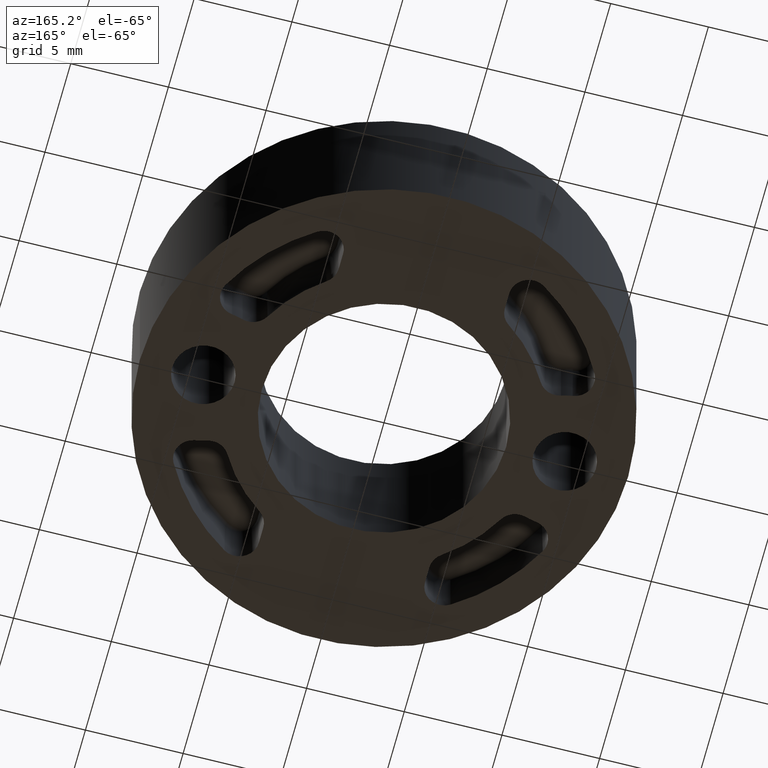
[diagram: clean part render]
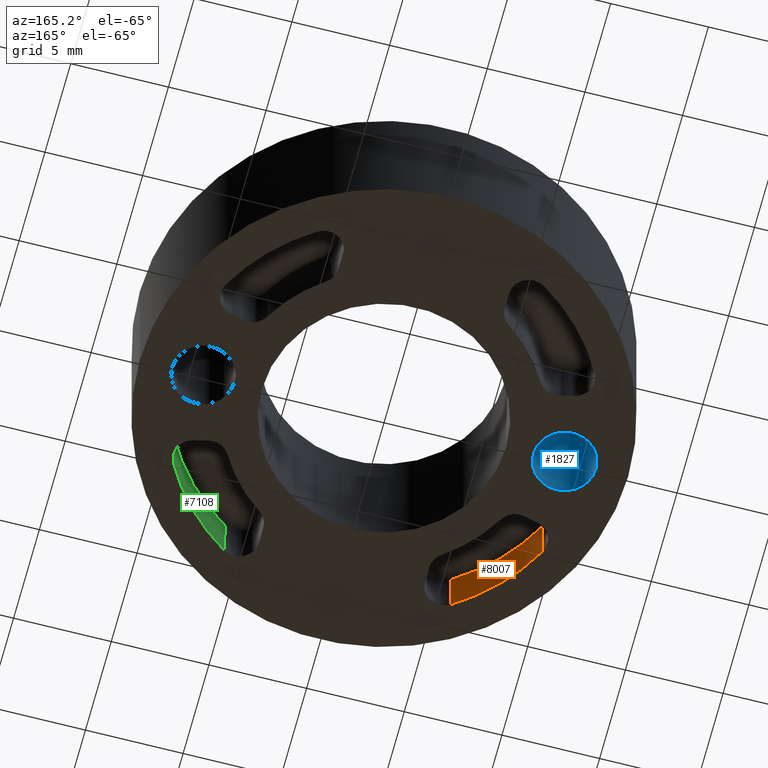
[diagram: same view with three faces highlighted in distinct colors, each labeled with its STEP entity id]
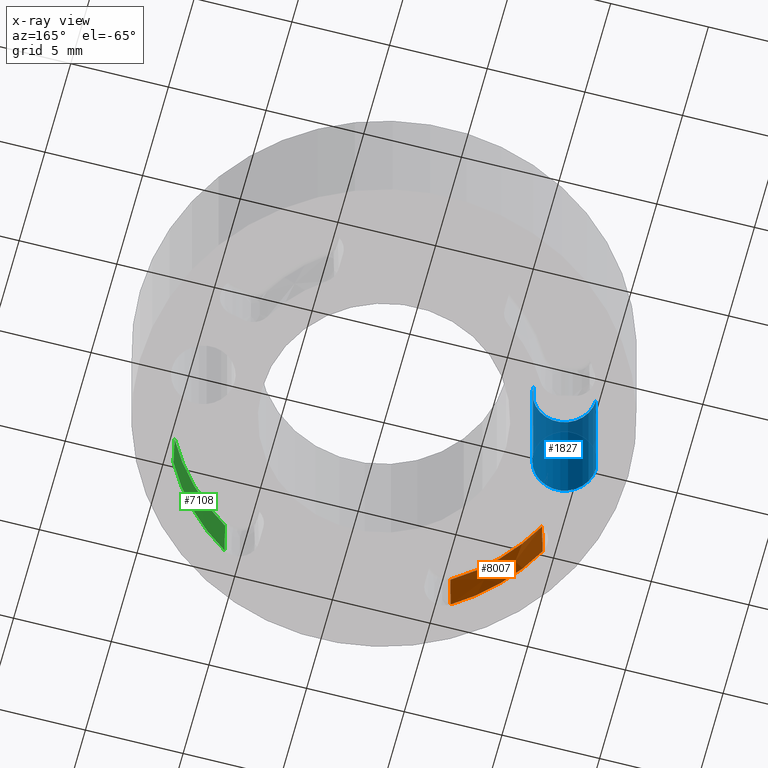
[diagram: x-ray of the same camera — body ghosted, the three highlighted faces saturated]
A machine part, auxiliary view with three faces highlighted in distinct colors.
The next image is the same camera in x-ray (body ghosted, the three faces saturated) — at least one of them is partly hidden behind the body in this view.
Their STEP definitions:

[orange] entity #8007 — the highlighted conical surface has half-angle 1 deg.
#1646 = EDGE_CURVE ( 'NONE', #1648, #1647, #9398, .T. ) ;
#1647 = VERTEX_POINT ( 'NONE', #9366 ) ;
#1648 = VERTEX_POINT ( 'NONE', #9365 ) ;
#6164 = FACE_OUTER_BOUND ( 'NONE', #8008, .T. ) ;
#6165 = DIRECTION ( 'NONE',  ( -0.01541418516166706400, -0.008184704408467004300, -0.9998476951563911600 ) ) ;
#6166 = VECTOR ( 'NONE', #6165, 1000.000000000000200 ) ;
#6167 = CARTESIAN_POINT ( 'NONE',  ( -9.404125156676473200, -4.993451409876539200, 3.000000000000000900 ) ) ;
#6168 = LINE ( 'NONE', #6167, #6166 ) ;
#6170 = CARTESIAN_POINT ( 'NONE',  ( -9.407154652190786900, -4.995060027200856300, 2.803490481287458400 ) ) ;
#6193 = DIRECTION ( 'NONE',  ( -0.009445890082034906800, -0.01467520531407486700, -0.9998476951563911600 ) ) ;
#6194 = VECTOR ( 'NONE', #6193, 1000.000000000000200 ) ;
#6195 = CARTESIAN_POINT ( 'NONE',  ( -5.762895126534068000, -8.953276869716642500, 3.000000000000000900 ) ) ;
#6196 = LINE ( 'NONE', #6195, #6194 ) ;
#6198 = CARTESIAN_POINT ( 'NONE',  ( -5.764751616600329400, -8.956161126536201800, 2.803490481287454800 ) ) ;
#6199 = DIRECTION ( 'NONE',  ( 1.000000000000000000, 4.731287430827688400E-030, 0.0000000000000000000 ) ) ;
#6200 = DIRECTION ( 'NONE',  ( -4.746415829343455000E-029, 1.143848312570467100E-029, 1.000000000000000000 ) ) ;
#6201 = CARTESIAN_POINT ( 'NONE',  ( -9.860761315262647600E-029, 0.0000000000000000000, 2.803490481287583200 ) ) ;
#6202 = AXIS2_PLACEMENT_3D ( 'NONE', #6201, #6200, #6199 ) ;
#6203 = DIRECTION ( 'NONE',  ( -1.000000000000000000, -4.731287430827687000E-030, 0.0000000000000000000 ) ) ;
#6204 = DIRECTION ( 'NONE',  ( 4.746415829343455000E-029, -1.143848312570467100E-029, -1.000000000000000000 ) ) ;
#6205 = AXIS2_PLACEMENT_3D ( 'NONE', #6208, #6204, #6203 ) ;
#6206 = CONICAL_SURFACE ( 'NONE', #6205, 10.64763480521534700, 0.01745329251994333400 ) ;
#6207 = CIRCLE ( 'NONE', #6202, 10.65106489162348400 ) ;
#6208 = CARTESIAN_POINT ( 'NONE',  ( -7.395570986446985700E-029, 0.0000000000000000000, 2.999999999999993800 ) ) ;
#8003 = VERTEX_POINT ( 'NONE', #6170 ) ;
#8005 = EDGE_CURVE ( 'NONE', #8003, #1648, #6168, .T. ) ;
#8007 = ADVANCED_FACE ( 'NONE', ( #6164 ), #6206, .F. ) ;
#8008 = EDGE_LOOP ( 'NONE', ( #8009, #8010, #8013, #8015 ) ) ;
#8009 = ORIENTED_EDGE ( 'NONE', *, *, #8005, .F. ) ;
#8010 = ORIENTED_EDGE ( 'NONE', *, *, #8011, .T. ) ;
#8011 = EDGE_CURVE ( 'NONE', #8003, #8012, #6207, .T. ) ;
#8012 = VERTEX_POINT ( 'NONE', #6198 ) ;
#8013 = ORIENTED_EDGE ( 'NONE', *, *, #8014, .T. ) ;
#8014 = EDGE_CURVE ( 'NONE', #8012, #1647, #6196, .T. ) ;
#8015 = ORIENTED_EDGE ( 'NONE', *, *, #1646, .F. ) ;
#9365 = CARTESIAN_POINT ( 'NONE',  ( -9.450374756199496000, -5.018009263381970600, 0.0000000000000000000 ) ) ;
#9366 = CARTESIAN_POINT ( 'NONE',  ( -5.791237113402050200, -8.997309191994824900, 0.0000000000000000000 ) ) ;
#9380 = DIRECTION ( 'NONE',  ( 1.000000000000000000, 4.731287430827687700E-030, -4.746415829343454500E-029 ) ) ;
#9381 = DIRECTION ( 'NONE',  ( -4.746415829343455000E-029, 1.143848312570467100E-029, 1.000000000000000000 ) ) ;
#9382 = CARTESIAN_POINT ( 'NONE',  ( 0.0000000000000000000, 0.0000000000000000000, 0.0000000000000000000 ) ) ;
#9383 = AXIS2_PLACEMENT_3D ( 'NONE', #9382, #9381, #9380 ) ;
#9398 = CIRCLE ( 'NONE', #9383, 10.70000000000000100 ) ;

[blue] entity #1827 — the highlighted cylindrical surface (edge-blend (fillet) strip) has radius 1.6 mm, axis along (-0, 0, 1).
#13 = FACE_OUTER_BOUND ( 'NONE', #1828, .T. ) ;
#43 = CARTESIAN_POINT ( 'NONE',  ( -7.649999999999997700, -8.673617379883959500E-016, -7.594265326949536800E-029 ) ) ;
#44 = CARTESIAN_POINT ( 'NONE',  ( -10.85000000000000100, -6.714247213767848500E-016, -7.594265326949536800E-029 ) ) ;
#45 = DIRECTION ( 'NONE',  ( 1.000000000000000000, 4.754639550205983600E-030, -4.746415829343455600E-029 ) ) ;
#46 = DIRECTION ( 'NONE',  ( -4.746415829343455000E-029, 1.143848312570467100E-029, 1.000000000000000000 ) ) ;
#47 = CARTESIAN_POINT ( 'NONE',  ( -9.250000000000000000, -8.673617379884035500E-016, 0.0000000000000000000 ) ) ;
#48 = AXIS2_PLACEMENT_3D ( 'NONE', #47, #46, #45 ) ;
#49 = CIRCLE ( 'NONE', #48, 1.600000000000001600 ) ;
#50 = DIRECTION ( 'NONE',  ( 1.000000000000000000, 4.754639550205983600E-030, -4.746415829343455600E-029 ) ) ;
#51 = DIRECTION ( 'NONE',  ( -4.746415829343455000E-029, 1.143848312570467100E-029, 1.000000000000000000 ) ) ;
#52 = AXIS2_PLACEMENT_3D ( 'NONE', #55, #51, #50 ) ;
#53 = CYLINDRICAL_SURFACE ( 'NONE', #52, 1.600000000000001600 ) ;
#55 = CARTESIAN_POINT ( 'NONE',  ( -9.250000000000000000, -8.673617379884035500E-016, 0.0000000000000000000 ) ) ;
#161 = DIRECTION ( 'NONE',  ( 1.000000000000000000, 7.703719777548935000E-030, 0.0000000000000000000 ) ) ;
#162 = DIRECTION ( 'NONE',  ( -4.746415829343455000E-029, 1.143848312570467100E-029, 1.000000000000000000 ) ) ;
#163 = CARTESIAN_POINT ( 'NONE',  ( -9.250000000000000000, 6.505213034913026600E-014, 7.999999999999998200 ) ) ;
#164 = AXIS2_PLACEMENT_3D ( 'NONE', #163, #162, #161 ) ;
#165 = CIRCLE ( 'NONE', #164, 1.600000000000001600 ) ;
#167 = DIRECTION ( 'NONE',  ( -4.746415829343455000E-029, 1.143848312570467100E-029, 1.000000000000000000 ) ) ;
#168 = VECTOR ( 'NONE', #167, 1000.000000000000000 ) ;
#169 = CARTESIAN_POINT ( 'NONE',  ( -7.649999999999997700, -8.673617379883959500E-016, -7.594265326949536800E-029 ) ) ;
#170 = LINE ( 'NONE', #169, #168 ) ;
#214 = CARTESIAN_POINT ( 'NONE',  ( -10.85000000000000100, -6.714247213767652200E-016, 7.999999999999998200 ) ) ;
#280 = DIRECTION ( 'NONE',  ( -4.746415829343455000E-029, 1.143848312570467100E-029, 1.000000000000000000 ) ) ;
#281 = VECTOR ( 'NONE', #280, 1000.000000000000000 ) ;
#282 = CARTESIAN_POINT ( 'NONE',  ( -10.85000000000000100, -6.714247213768305000E-016, 7.594265326949536800E-029 ) ) ;
#283 = LINE ( 'NONE', #282, #281 ) ;
#1693 = VERTEX_POINT ( 'NONE', #9474 ) ;
#1694 = ORIENTED_EDGE ( 'NONE', *, *, #1869, .F. ) ;
#1736 = ORIENTED_EDGE ( 'NONE', *, *, #1912, .T. ) ;
#1827 = ADVANCED_FACE ( 'NONE', ( #13 ), #53, .F. ) ;
#1828 = EDGE_LOOP ( 'NONE', ( #1830, #1736, #1870, #1694 ) ) ;
#1830 = ORIENTED_EDGE ( 'NONE', *, *, #1831, .F. ) ;
#1831 = EDGE_CURVE ( 'NONE', #1832, #1833, #49, .T. ) ;
#1832 = VERTEX_POINT ( 'NONE', #44 ) ;
#1833 = VERTEX_POINT ( 'NONE', #43 ) ;
#1869 = EDGE_CURVE ( 'NONE', #1833, #1693, #170, .T. ) ;
#1870 = ORIENTED_EDGE ( 'NONE', *, *, #1871, .T. ) ;
#1871 = EDGE_CURVE ( 'NONE', #1893, #1693, #165, .T. ) ;
#1893 = VERTEX_POINT ( 'NONE', #214 ) ;
#1912 = EDGE_CURVE ( 'NONE', #1832, #1893, #283, .T. ) ;
#9474 = CARTESIAN_POINT ( 'NONE',  ( -7.649999999999997700, 6.505213034913027900E-014, 7.999999999999998200 ) ) ;

[green] entity #7108 — the highlighted conical surface has half-angle 1 deg.
#1655 = VERTEX_POINT ( 'NONE', #9372 ) ;
#1657 = EDGE_CURVE ( 'NONE', #1655, #1658, #9353, .T. ) ;
#1658 = VERTEX_POINT ( 'NONE', #9399 ) ;
#3068 = DIRECTION ( 'NONE',  ( 0.01541418516166711400, -0.008184704408466914000, -0.9998476951563911600 ) ) ;
#3069 = VECTOR ( 'NONE', #3068, 1000.000000000000200 ) ;
#3070 = CARTESIAN_POINT ( 'NONE',  ( 9.404125156676475000, -4.993451409876528600, 3.000000000000000900 ) ) ;
#3071 = LINE ( 'NONE', #3070, #3069 ) ;
#3073 = DIRECTION ( 'NONE',  ( 1.000000000000000000, 4.731287430827687700E-030, 0.0000000000000000000 ) ) ;
#3074 = DIRECTION ( 'NONE',  ( -4.746415829343455000E-029, 1.143848312570467100E-029, 1.000000000000000000 ) ) ;
#3075 = CARTESIAN_POINT ( 'NONE',  ( -9.860761315262647600E-029, 0.0000000000000000000, 2.803490481287583200 ) ) ;
#3076 = AXIS2_PLACEMENT_3D ( 'NONE', #3075, #3074, #3073 ) ;
#3077 = CIRCLE ( 'NONE', #3076, 10.65106489162348400 ) ;
#3163 = CARTESIAN_POINT ( 'NONE',  ( 9.407154652190774500, -4.995060027200849200, 2.803490481287458400 ) ) ;
#3170 = CONICAL_SURFACE ( 'NONE', #3226, 10.64763480521534500, 0.01745329251994333400 ) ;
#3185 = FACE_OUTER_BOUND ( 'NONE', #7112, .T. ) ;
#3186 = CARTESIAN_POINT ( 'NONE',  ( 5.764751616600344500, -8.956161126536201800, 2.803490481287454800 ) ) ;
#3219 = DIRECTION ( 'NONE',  ( 0.009445890082034922400, -0.01467520531407484300, -0.9998476951563911600 ) ) ;
#3220 = VECTOR ( 'NONE', #3219, 1000.000000000000200 ) ;
#3221 = CARTESIAN_POINT ( 'NONE',  ( 5.762895126534083100, -8.953276869716642500, 3.000000000000000900 ) ) ;
#3222 = LINE ( 'NONE', #3221, #3220 ) ;
#3223 = DIRECTION ( 'NONE',  ( -1.000000000000000000, -4.731287430827688400E-030, 0.0000000000000000000 ) ) ;
#3224 = DIRECTION ( 'NONE',  ( 4.746415829343455000E-029, -1.143848312570467100E-029, -1.000000000000000000 ) ) ;
#3225 = CARTESIAN_POINT ( 'NONE',  ( -7.395570986446985700E-029, 0.0000000000000000000, 2.999999999999993800 ) ) ;
#3226 = AXIS2_PLACEMENT_3D ( 'NONE', #3225, #3224, #3223 ) ;
#7076 = EDGE_CURVE ( 'NONE', #7107, #7099, #3077, .T. ) ;
#7077 = ORIENTED_EDGE ( 'NONE', *, *, #7078, .T. ) ;
#7078 = EDGE_CURVE ( 'NONE', #7099, #1658, #3071, .T. ) ;
#7079 = ORIENTED_EDGE ( 'NONE', *, *, #1657, .F. ) ;
#7099 = VERTEX_POINT ( 'NONE', #3163 ) ;
#7107 = VERTEX_POINT ( 'NONE', #3186 ) ;
#7108 = ADVANCED_FACE ( 'NONE', ( #3185 ), #3170, .F. ) ;
#7110 = EDGE_CURVE ( 'NONE', #7107, #1655, #3222, .T. ) ;
#7112 = EDGE_LOOP ( 'NONE', ( #7261, #7262, #7077, #7079 ) ) ;
#7261 = ORIENTED_EDGE ( 'NONE', *, *, #7110, .F. ) ;
#7262 = ORIENTED_EDGE ( 'NONE', *, *, #7076, .T. ) ;
#9260 = DIRECTION ( 'NONE',  ( 1.000000000000000000, 4.731287430827688400E-030, -4.746415829343454500E-029 ) ) ;
#9350 = DIRECTION ( 'NONE',  ( -4.746415829343455000E-029, 1.143848312570467100E-029, 1.000000000000000000 ) ) ;
#9351 = CARTESIAN_POINT ( 'NONE',  ( 0.0000000000000000000, 0.0000000000000000000, 0.0000000000000000000 ) ) ;
#9352 = AXIS2_PLACEMENT_3D ( 'NONE', #9351, #9350, #9260 ) ;
#9353 = CIRCLE ( 'NONE', #9352, 10.69999999999999900 ) ;
#9372 = CARTESIAN_POINT ( 'NONE',  ( 5.791237113402066200, -8.997309191994824900, 0.0000000000000000000 ) ) ;
#9399 = CARTESIAN_POINT ( 'NONE',  ( 9.450374756199497700, -5.018009263381960000, 0.0000000000000000000 ) ) ;